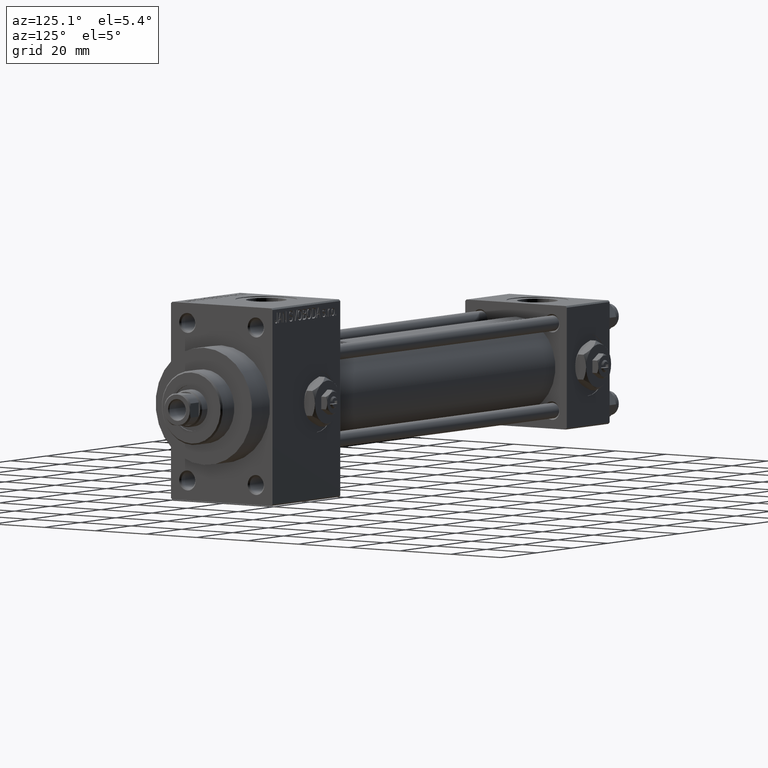
[diagram: clean part render]
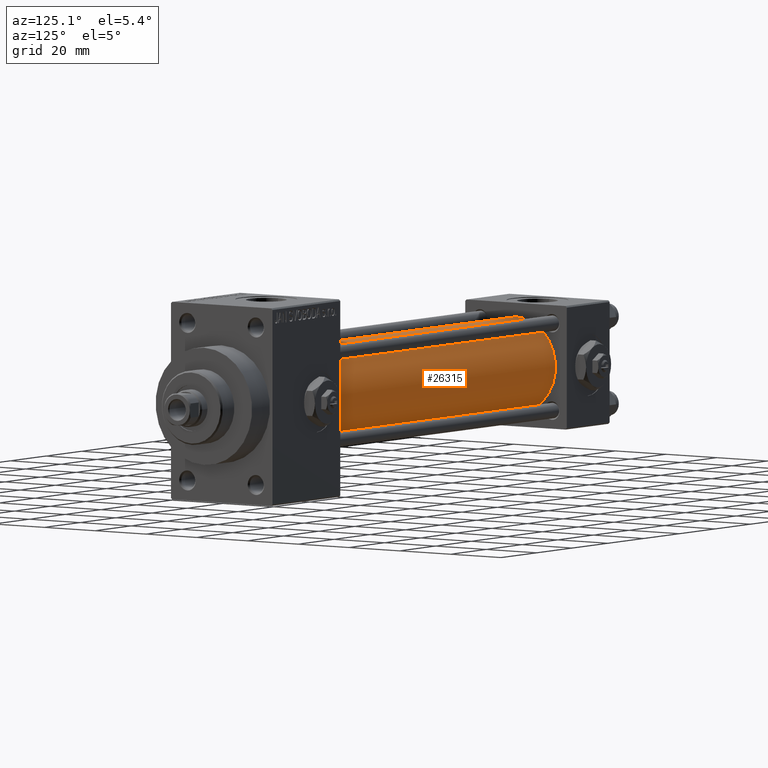
[diagram: same view with one face highlighted and labeled with its STEP entity id]
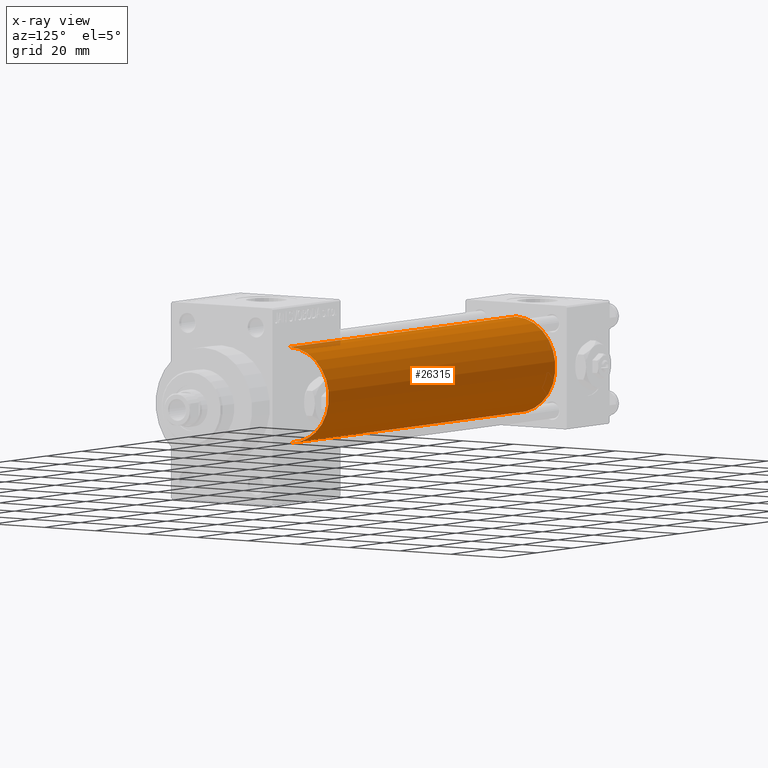
[diagram: x-ray of the same camera — body ghosted, the highlighted face saturated]
A machine part, auxiliary view. The second image highlights one B-rep face of the part: STEP entity #26315.
The next image is the same camera in x-ray: the body ghosted, the highlighted face saturated — about 1% of this face is hidden behind the body in this view.
In plain terms, the highlighted cylindrical surface (partial cylindrical patch) has radius 15.5 mm, axis along (-1, -0, -0).
Its self-contained STEP definition (entity closure, byte-faithful):
#199 = CARTESIAN_POINT ( 'NONE',  ( 151.0000000000000000, -2.602085213965210642E-15, 0.000000000000000000 ) ) ;
#1193 = DIRECTION ( 'NONE',  ( 0.000000000000000000, 0.000000000000000000, -1.000000000000000000 ) ) ;
#5472 = CARTESIAN_POINT ( 'NONE',  ( 23.99999999999999289, -2.602085213965210642E-15, 15.50000000000000000 ) ) ;
#7869 = DIRECTION ( 'NONE',  ( -1.000000000000000000, -0.000000000000000000, -0.000000000000000000 ) ) ;
#10051 = CIRCLE ( 'NONE', #10826, 15.50000000000000000 ) ;
#10826 = AXIS2_PLACEMENT_3D ( 'NONE', #30664, #45802, #26928 ) ;
#10882 = EDGE_LOOP ( 'NONE', ( #20353, #37517, #13958, #30051 ) ) ;
#13958 = ORIENTED_EDGE ( 'NONE', *, *, #25604, .T. ) ;
#14300 = LINE ( 'NONE', #17776, #17314 ) ;
#16943 = VERTEX_POINT ( 'NONE', #26209 ) ;
#17314 = VECTOR ( 'NONE', #25737, 1000.000000000000000 ) ;
#17776 = CARTESIAN_POINT ( 'NONE',  ( 151.0000000000000000, -2.602085213965210642E-15, 15.50000000000000000 ) ) ;
#19055 = DIRECTION ( 'NONE',  ( 1.000000000000000000, 0.000000000000000000, 0.000000000000000000 ) ) ;
#20036 = CARTESIAN_POINT ( 'NONE',  ( 151.0000000000000000, -2.602085213965210642E-15, 0.000000000000000000 ) ) ;
#20353 = ORIENTED_EDGE ( 'NONE', *, *, #20748, .F. ) ;
#20748 = EDGE_CURVE ( 'NONE', #25336, #21004, #23352, .T. ) ;
#21004 = VERTEX_POINT ( 'NONE', #37882 ) ;
#22549 = VECTOR ( 'NONE', #37959, 1000.000000000000000 ) ;
#22778 = CYLINDRICAL_SURFACE ( 'NONE', #42603, 15.50000000000000000 ) ;
#23352 = CIRCLE ( 'NONE', #35229, 15.50000000000000000 ) ;
#25336 = VERTEX_POINT ( 'NONE', #42635 ) ;
#25604 = EDGE_CURVE ( 'NONE', #16943, #36105, #10051, .T. ) ;
#25737 = DIRECTION ( 'NONE',  ( -1.000000000000000000, -0.000000000000000000, -0.000000000000000000 ) ) ;
#26209 = CARTESIAN_POINT ( 'NONE',  ( 23.99999999999999289, -7.038826752868131828E-16, -15.50000000000000000 ) ) ;
#26315 = ADVANCED_FACE ( 'NONE', ( #41897 ), #22778, .T. ) ;
#26928 = DIRECTION ( 'NONE',  ( 0.000000000000000000, 0.000000000000000000, 1.000000000000000000 ) ) ;
#28401 = EDGE_CURVE ( 'NONE', #25336, #16943, #48633, .T. ) ;
#30051 = ORIENTED_EDGE ( 'NONE', *, *, #42260, .F. ) ;
#30477 = DIRECTION ( 'NONE',  ( 0.000000000000000000, 0.000000000000000000, 1.000000000000000000 ) ) ;
#30664 = CARTESIAN_POINT ( 'NONE',  ( 23.99999999999999289, -2.602085213965210642E-15, 0.000000000000000000 ) ) ;
#35229 = AXIS2_PLACEMENT_3D ( 'NONE', #20036, #19055, #1193 ) ;
#36105 = VERTEX_POINT ( 'NONE', #5472 ) ;
#37517 = ORIENTED_EDGE ( 'NONE', *, *, #28401, .T. ) ;
#37710 = CARTESIAN_POINT ( 'NONE',  ( 151.0000000000000000, -7.038826752868131828E-16, -15.50000000000000000 ) ) ;
#37882 = CARTESIAN_POINT ( 'NONE',  ( 151.0000000000000000, -2.602085213965210642E-15, 15.50000000000000000 ) ) ;
#37959 = DIRECTION ( 'NONE',  ( -1.000000000000000000, -0.000000000000000000, -0.000000000000000000 ) ) ;
#41897 = FACE_OUTER_BOUND ( 'NONE', #10882, .T. ) ;
#42260 = EDGE_CURVE ( 'NONE', #21004, #36105, #14300, .T. ) ;
#42603 = AXIS2_PLACEMENT_3D ( 'NONE', #199, #7869, #30477 ) ;
#42635 = CARTESIAN_POINT ( 'NONE',  ( 151.0000000000000000, -7.038826752868131828E-16, -15.50000000000000000 ) ) ;
#45802 = DIRECTION ( 'NONE',  ( 1.000000000000000000, 0.000000000000000000, 0.000000000000000000 ) ) ;
#48633 = LINE ( 'NONE', #37710, #22549 ) ;